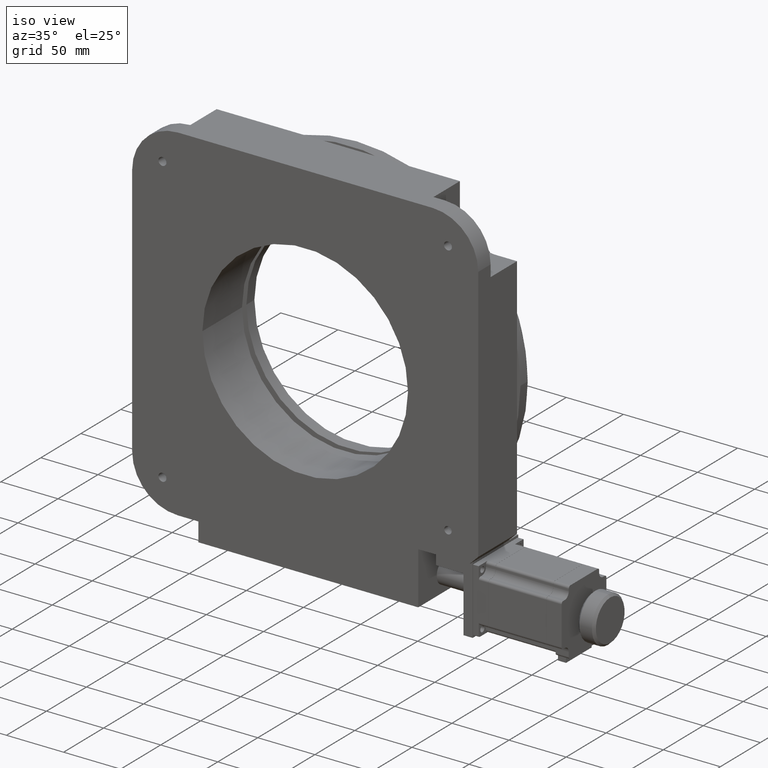
[diagram: clean part render]
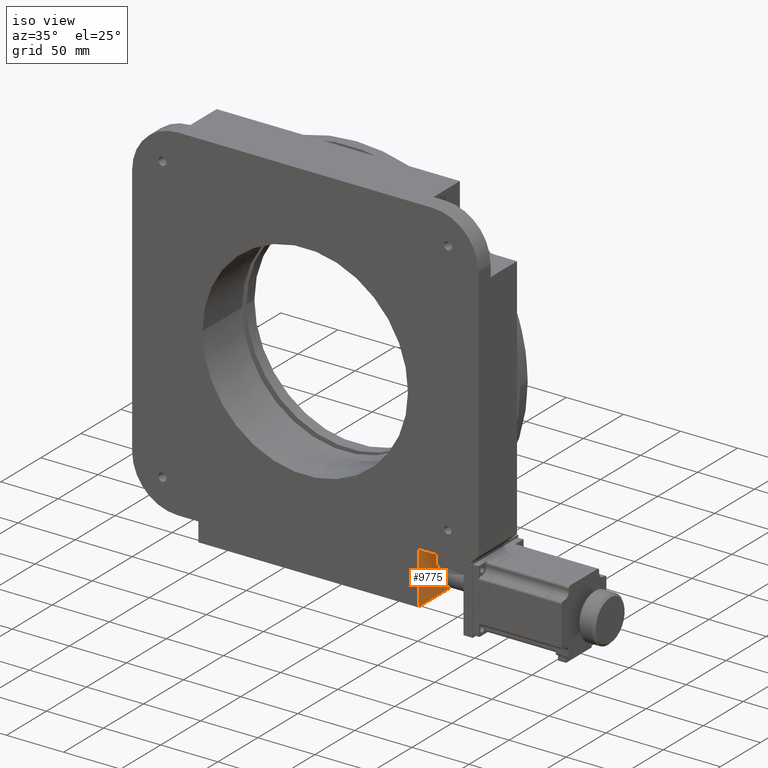
[diagram: same view with one face highlighted and labeled with its STEP entity id]
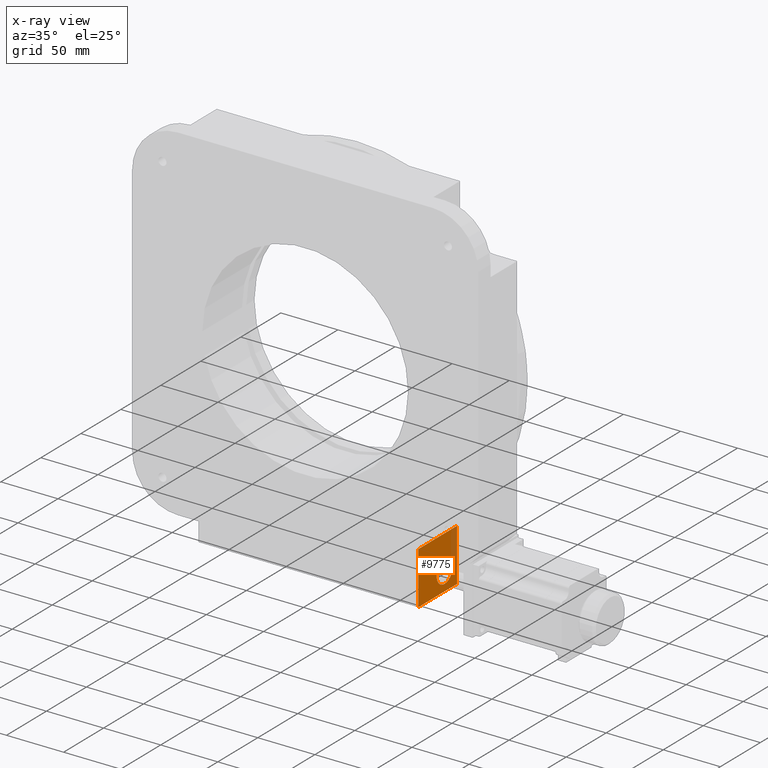
[diagram: x-ray of the same camera — body ghosted, the highlighted face saturated]
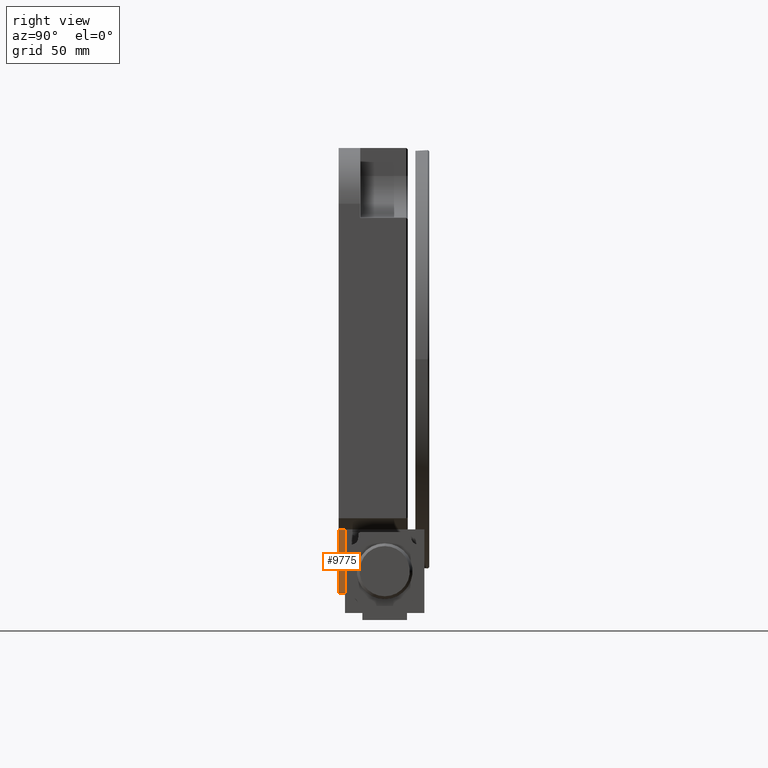
[diagram: same view with one face highlighted and labeled with its STEP entity id]
A machine part, iso view. The second image highlights one B-rep face of the part: STEP entity #9775.
The next image is the same camera in x-ray: the body ghosted, the highlighted face saturated — about 11% of this face is hidden behind the body in this view.
A second angle (right view) of the same face is appended — the face is thin or edge-on in the first view.
In plain terms, the highlighted planar face has unit normal (-1, 0, -0).
Its self-contained STEP definition (entity closure, byte-faithful):
#134 = CARTESIAN_POINT ( 'NONE',  ( 250.4999999999998300, 48.49999999999997900, -319.4999999999998900 ) ) ;
#229 = DIRECTION ( 'NONE',  ( 1.000000000000000000, -1.502143935577762900E-016, -3.654484122724473900E-016 ) ) ;
#432 = FACE_BOUND ( 'NONE', #770, .T. ) ;
#578 = CARTESIAN_POINT ( 'NONE',  ( 250.4999999999997700, -3.722327060643838900E-014, -319.4999999999998900 ) ) ;
#770 = EDGE_LOOP ( 'NONE', ( #13079, #3645 ) ) ;
#1091 = EDGE_CURVE ( 'NONE', #15093, #13713, #11100, .T. ) ;
#1172 = LINE ( 'NONE', #14872, #10406 ) ;
#1743 = AXIS2_PLACEMENT_3D ( 'NONE', #10966, #229, #2819 ) ;
#1893 = DIRECTION ( 'NONE',  ( -1.502143935577759200E-016, -1.000000000000000000, -5.220704160324248300E-032 ) ) ;
#2042 = CIRCLE ( 'NONE', #1743, 10.00000000000000900 ) ;
#2215 = EDGE_LOOP ( 'NONE', ( #6318, #12196, #9802, #10670 ) ) ;
#2444 = AXIS2_PLACEMENT_3D ( 'NONE', #578, #13498, #9944 ) ;
#2819 = DIRECTION ( 'NONE',  ( 0.0000000000000000000, 0.0000000000000000000, -1.000000000000000000 ) ) ;
#3048 = EDGE_CURVE ( 'NONE', #10470, #5848, #14723, .T. ) ;
#3253 = VERTEX_POINT ( 'NONE', #134 ) ;
#3275 = EDGE_CURVE ( 'NONE', #3253, #10470, #13375, .T. ) ;
#3410 = CARTESIAN_POINT ( 'NONE',  ( 250.4999999999997700, -3.722327060643846400E-014, -1.665334536937734800E-013 ) ) ;
#3480 = CARTESIAN_POINT ( 'NONE',  ( 250.4999999999999400, 48.49999999999997900, -273.5000000000000600 ) ) ;
#3645 = ORIENTED_EDGE ( 'NONE', *, *, #1091, .F. ) ;
#3810 = DIRECTION ( 'NONE',  ( 0.0000000000000000000, 0.0000000000000000000, -1.000000000000000000 ) ) ;
#3930 = CARTESIAN_POINT ( 'NONE',  ( 250.4999999999997700, -3.722327060643838900E-014, -319.4999999999998900 ) ) ;
#4310 = DIRECTION ( 'NONE',  ( 9.714451465470119700E-017, -6.162975822039154000E-033, -1.000000000000000000 ) ) ;
#5257 = LINE ( 'NONE', #13834, #13948 ) ;
#5422 = CARTESIAN_POINT ( 'NONE',  ( 250.4999999999998300, -3.722327060643845200E-014, -319.4999999999998900 ) ) ;
#5665 = DIRECTION ( 'NONE',  ( -9.714451465470121000E-017, -3.761453724692206000E-032, 1.000000000000000000 ) ) ;
#5848 = VERTEX_POINT ( 'NONE', #9924 ) ;
#5954 = EDGE_CURVE ( 'NONE', #8527, #3253, #5257, .T. ) ;
#6001 = DIRECTION ( 'NONE',  ( 1.000000000000000000, -1.502143935577762900E-016, -3.654484122724473900E-016 ) ) ;
#6318 = ORIENTED_EDGE ( 'NONE', *, *, #8362, .T. ) ;
#6509 = EDGE_CURVE ( 'NONE', #13713, #15093, #2042, .T. ) ;
#6718 = FACE_OUTER_BOUND ( 'NONE', #2215, .T. ) ;
#7716 = CARTESIAN_POINT ( 'NONE',  ( 250.4999999999997700, 32.99999999999995700, -293.4999999999997200 ) ) ;
#8362 = EDGE_CURVE ( 'NONE', #8527, #5848, #1172, .T. ) ;
#8527 = VERTEX_POINT ( 'NONE', #3480 ) ;
#9436 = VECTOR ( 'NONE', #13303, 1000.000000000000000 ) ;
#9557 = CARTESIAN_POINT ( 'NONE',  ( 250.4999999999997700, 32.99999999999996400, -313.4999999999997200 ) ) ;
#9775 = ADVANCED_FACE ( 'NONE', ( #432, #6718 ), #14748, .F. ) ;
#9802 = ORIENTED_EDGE ( 'NONE', *, *, #3275, .F. ) ;
#9924 = CARTESIAN_POINT ( 'NONE',  ( 250.4999999999998300, -3.722327060643845200E-014, -273.4999999999998300 ) ) ;
#9944 = DIRECTION ( 'NONE',  ( 1.502143935577764200E-016, 1.000000000000000000, 8.429528534281309500E-033 ) ) ;
#10406 = VECTOR ( 'NONE', #1893, 1000.000000000000000 ) ;
#10470 = VERTEX_POINT ( 'NONE', #5422 ) ;
#10670 = ORIENTED_EDGE ( 'NONE', *, *, #5954, .F. ) ;
#10814 = VECTOR ( 'NONE', #5665, 1000.000000000000000 ) ;
#10966 = CARTESIAN_POINT ( 'NONE',  ( 250.4999999999997700, 32.99999999999996400, -303.4999999999997200 ) ) ;
#11100 = CIRCLE ( 'NONE', #12446, 10.00000000000000900 ) ;
#12196 = ORIENTED_EDGE ( 'NONE', *, *, #3048, .F. ) ;
#12446 = AXIS2_PLACEMENT_3D ( 'NONE', #14440, #6001, #3810 ) ;
#13079 = ORIENTED_EDGE ( 'NONE', *, *, #6509, .F. ) ;
#13303 = DIRECTION ( 'NONE',  ( -1.502143935577764200E-016, -1.000000000000000000, -8.429528534281309500E-033 ) ) ;
#13375 = LINE ( 'NONE', #3930, #9436 ) ;
#13498 = DIRECTION ( 'NONE',  ( -1.000000000000000000, 1.502143935577764200E-016, -9.714451465470119700E-017 ) ) ;
#13713 = VERTEX_POINT ( 'NONE', #9557 ) ;
#13834 = CARTESIAN_POINT ( 'NONE',  ( 250.4999999999998300, 48.49999999999995700, -319.4999999999998900 ) ) ;
#13948 = VECTOR ( 'NONE', #4310, 1000.000000000000000 ) ;
#14440 = CARTESIAN_POINT ( 'NONE',  ( 250.4999999999997700, 32.99999999999996400, -303.4999999999997200 ) ) ;
#14723 = LINE ( 'NONE', #3410, #10814 ) ;
#14748 = PLANE ( 'NONE',  #2444 ) ;
#14872 = CARTESIAN_POINT ( 'NONE',  ( 250.4999999999999400, -3.722327060643843900E-014, -273.5000000000000600 ) ) ;
#15093 = VERTEX_POINT ( 'NONE', #7716 ) ;